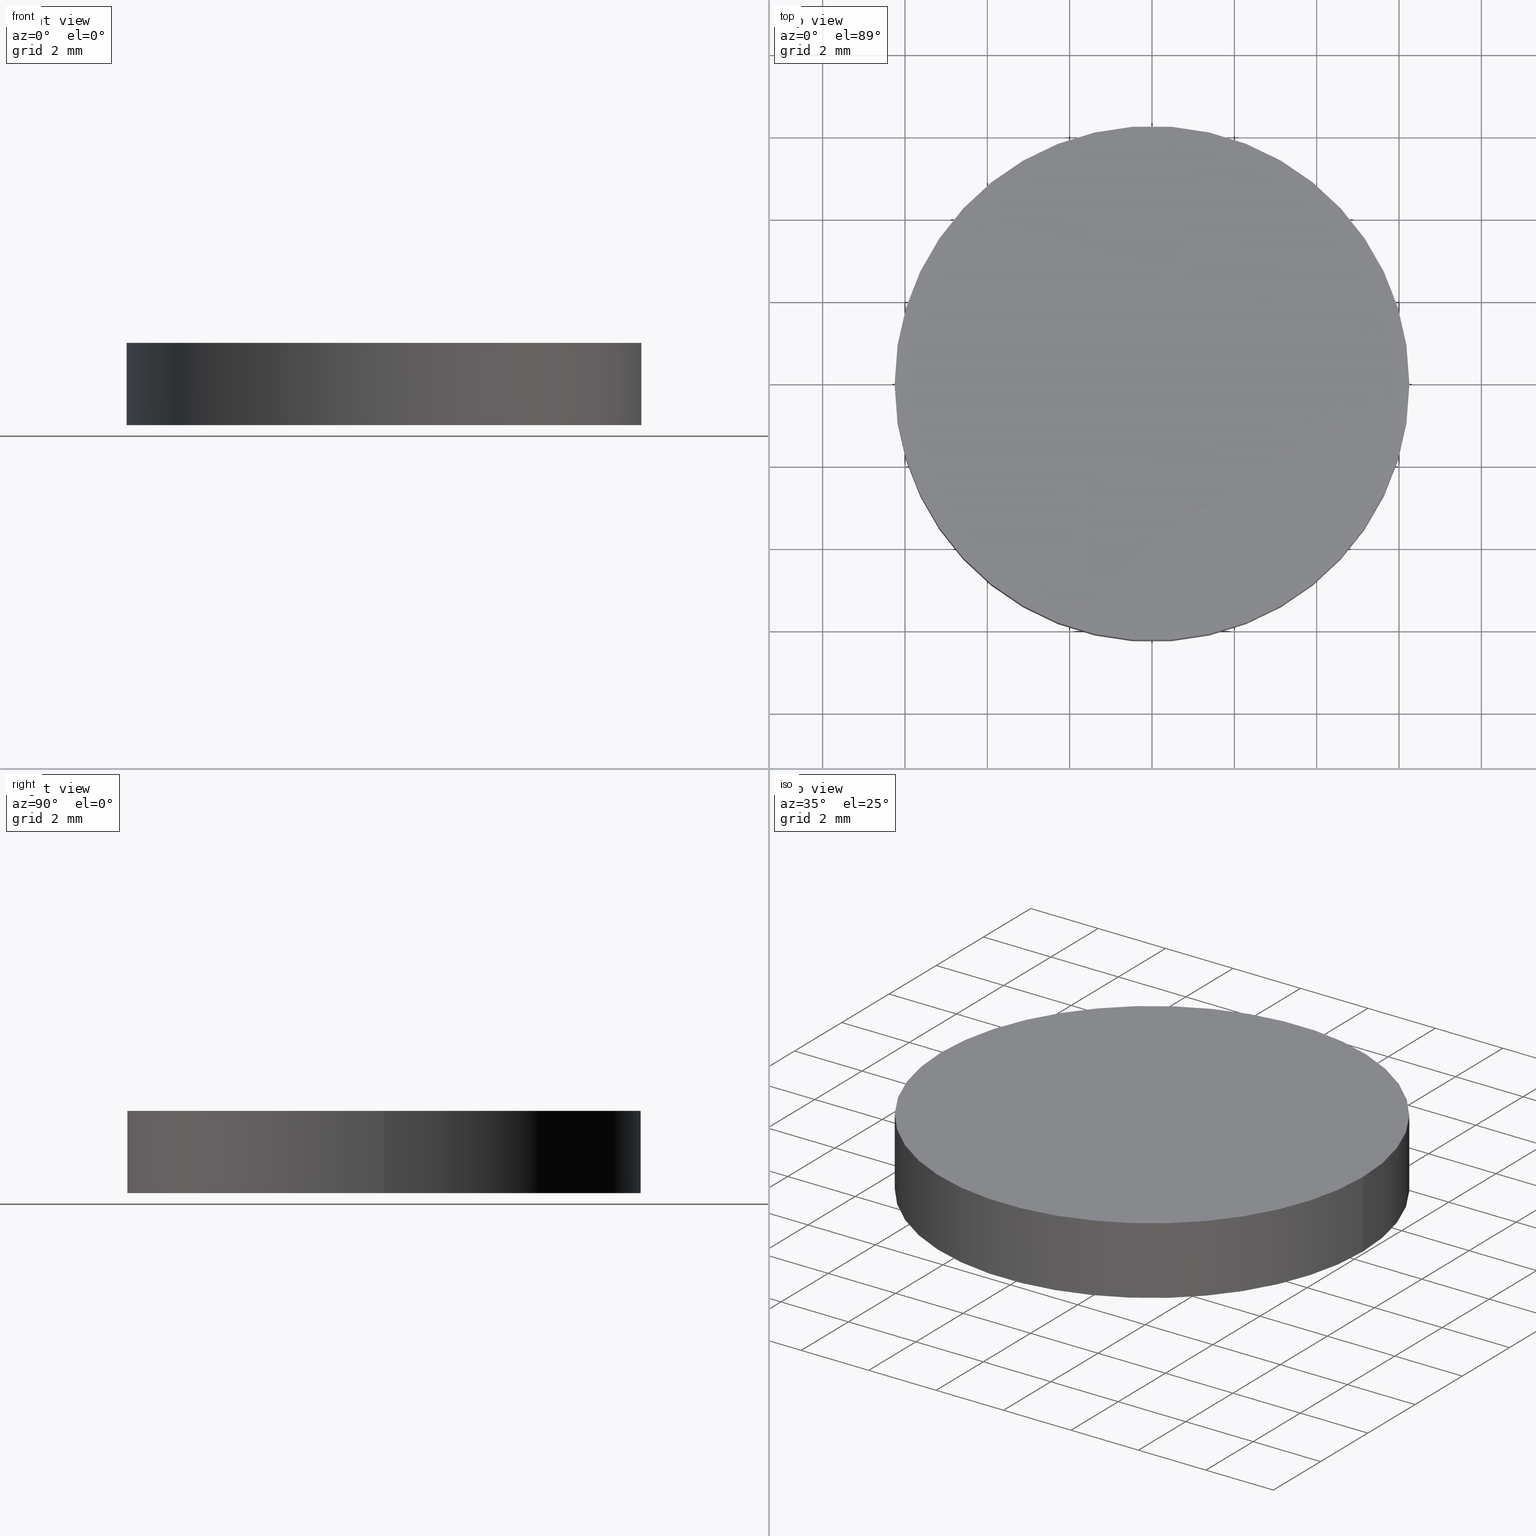
[diagram: canonical four-view strip — front | top / right | iso, engineering-drawing reading convention]
A machine part, canonical four-view strip (front | top / right | iso — engineering-drawing reading convention). The complete STEP part file that produces these views, byte-faithful:
ISO-10303-21;
HEADER;
FILE_DESCRIPTION (( 'STEP AP214' ),
    '1' );
FILE_NAME ('190123.STEP',
    '2019-07-17T03:26:46',
    ( 'user' ),
    ( '΢���й�' ),
    'SwSTEP 2.0',
    'SolidWorks 2016',
    '' );
FILE_SCHEMA (( 'AUTOMOTIVE_DESIGN' ));
ENDSEC;

DATA;
#1 = DIRECTION ( 'NONE',  ( 0.0000000000000000000, 0.0000000000000000000, 1.000000000000000000 ) ) ;
#2 = FILL_AREA_STYLE ('',( #82 ) ) ;
#3 = COLOUR_RGB ( '',1.000000000000000000, 1.000000000000000000, 1.000000000000000000 ) ;
#4 = CIRCLE ( 'NONE', #115, 6.250000000000000000 ) ;
#5 = MECHANICAL_DESIGN_GEOMETRIC_PRESENTATION_REPRESENTATION (  '', ( #132 ), #12 ) ;
#6 = ADVANCED_FACE ( 'NONE', ( #59 ), #35, .F. ) ;
#7 = VERTEX_POINT ( 'NONE', #8 ) ;
#8 = CARTESIAN_POINT ( 'NONE',  ( -6.250000000000000000, 0.0000000000000000000, 2.000000000000000000 ) ) ;
#9 = DIRECTION ( 'NONE',  ( 1.000000000000000000, 0.0000000000000000000, 0.0000000000000000000 ) ) ;
#10 = ADVANCED_FACE ( 'NONE', ( #79 ), #100, .T. ) ;
#11 = VERTEX_POINT ( 'NONE', #78 ) ;
#12 =( GEOMETRIC_REPRESENTATION_CONTEXT ( 3 ) GLOBAL_UNCERTAINTY_ASSIGNED_CONTEXT ( ( #60 ) ) GLOBAL_UNIT_ASSIGNED_CONTEXT ( ( #53, #130, #40 ) ) REPRESENTATION_CONTEXT ( 'NONE', 'WORKASPACE' ) );
#13 = EDGE_CURVE ( 'NONE', #91, #11, #113, .T. ) ;
#14 = FACE_OUTER_BOUND ( 'NONE', #86, .T. ) ;
#15 = ORIENTED_EDGE ( 'NONE', *, *, #19, .F. ) ;
#16 = PRODUCT_DEFINITION_SHAPE ( 'NONE', 'NONE',  #37 ) ;
#17 = DIRECTION ( 'NONE',  ( -1.000000000000000000, 0.0000000000000000000, 0.0000000000000000000 ) ) ;
#18 = DIRECTION ( 'NONE',  ( 1.000000000000000000, 0.0000000000000000000, -0.0000000000000000000 ) ) ;
#19 = EDGE_CURVE ( 'NONE', #136, #11, #21, .T. ) ;
#20 = FACE_OUTER_BOUND ( 'NONE', #71, .T. ) ;
#21 = LINE ( 'NONE', #121, #58 ) ;
#22 = AXIS2_PLACEMENT_3D ( 'NONE', #116, #87, #18 ) ;
#23 = DIRECTION ( 'NONE',  ( 0.0000000000000000000, 0.0000000000000000000, 1.000000000000000000 ) ) ;
#24 = PRODUCT_CONTEXT ( 'NONE', #80, 'mechanical' ) ;
#25 = CARTESIAN_POINT ( 'NONE',  ( 6.250000000000000000, 7.654042494670957600E-016, 2.000000000000000000 ) ) ;
#26 = FILL_AREA_STYLE_COLOUR ( '', #75 ) ;
#27 = DIRECTION ( 'NONE',  ( -0.0000000000000000000, -0.0000000000000000000, -1.000000000000000000 ) ) ;
#28 = DIRECTION ( 'NONE',  ( 1.000000000000000000, 0.0000000000000000000, -0.0000000000000000000 ) ) ;
#29 = LINE ( 'NONE', #76, #111 ) ;
#30 = APPLICATION_CONTEXT ( 'automotive_design' ) ;
#31 =( NAMED_UNIT ( * ) PLANE_ANGLE_UNIT ( ) SI_UNIT ( $, .RADIAN. ) );
#32 = AXIS2_PLACEMENT_3D ( 'NONE', #74, #93, #9 ) ;
#33 = EDGE_CURVE ( 'NONE', #11, #91, #4, .T. ) ;
#34 = ORIENTED_EDGE ( 'NONE', *, *, #48, .T. ) ;
#35 = PLANE ( 'NONE',  #61 ) ;
#36 = ORIENTED_EDGE ( 'NONE', *, *, #96, .F. ) ;
#37 = PRODUCT_DEFINITION ( 'δ֪', '', #47, #126 ) ;
#38 = CIRCLE ( 'NONE', #50, 6.250000000000000000 ) ;
#39 = ORIENTED_EDGE ( 'NONE', *, *, #96, .T. ) ;
#40 =( NAMED_UNIT ( * ) SI_UNIT ( $, .STERADIAN. ) SOLID_ANGLE_UNIT ( ) );
#41 = SHAPE_DEFINITION_REPRESENTATION ( #16, #108 ) ;
#42 = SURFACE_STYLE_FILL_AREA ( #135 ) ;
#43 = ORIENTED_EDGE ( 'NONE', *, *, #33, .F. ) ;
#44 = DIRECTION ( 'NONE',  ( 1.000000000000000000, 0.0000000000000000000, 0.0000000000000000000 ) ) ;
#45 = CARTESIAN_POINT ( 'NONE',  ( 0.0000000000000000000, 0.0000000000000000000, 0.0000000000000000000 ) ) ;
#46 = CARTESIAN_POINT ( 'NONE',  ( 0.0000000000000000000, 0.0000000000000000000, 2.000000000000000000 ) ) ;
#47 = PRODUCT_DEFINITION_FORMATION_WITH_SPECIFIED_SOURCE ( '�κ�', '', #125, .NOT_KNOWN. ) ;
#48 = EDGE_CURVE ( 'NONE', #7, #91, #29, .T. ) ;
#49 = ORIENTED_EDGE ( 'NONE', *, *, #139, .T. ) ;
#50 = AXIS2_PLACEMENT_3D ( 'NONE', #112, #23, #57 ) ;
#51 = PRESENTATION_LAYER_ASSIGNMENT (  '', '', ( #62 ) ) ;
#52 = DIRECTION ( 'NONE',  ( 0.0000000000000000000, 0.0000000000000000000, 1.000000000000000000 ) ) ;
#53 =( LENGTH_UNIT ( ) NAMED_UNIT ( * ) SI_UNIT ( .MILLI., .METRE. ) );
#54 =( LENGTH_UNIT ( ) NAMED_UNIT ( * ) SI_UNIT ( .MILLI., .METRE. ) );
#55 = PRESENTATION_STYLE_ASSIGNMENT (( #105 ) ) ;
#56 =( NAMED_UNIT ( * ) PLANE_ANGLE_UNIT ( ) SI_UNIT ( $, .RADIAN. ) );
#57 = DIRECTION ( 'NONE',  ( 1.000000000000000000, 0.0000000000000000000, 0.0000000000000000000 ) ) ;
#58 = VECTOR ( 'NONE', #83, 1000.000000000000000 ) ;
#59 = FACE_OUTER_BOUND ( 'NONE', #127, .T. ) ;
#60 = UNCERTAINTY_MEASURE_WITH_UNIT (LENGTH_MEASURE( 1.000000000000000100E-005 ), #53, 'distance_accuracy_value', 'NONE');
#61 = AXIS2_PLACEMENT_3D ( 'NONE', #45, #52, #28 ) ;
#62 = STYLED_ITEM ( 'NONE', ( #67 ), #99 ) ;
#63 = EDGE_LOOP ( 'NONE', ( #49, #39 ) ) ;
#64 = APPLICATION_PROTOCOL_DEFINITION ( 'draft international standard', 'automotive_design', 1998, #30 ) ;
#65 = DIRECTION ( 'NONE',  ( 0.0000000000000000000, 0.0000000000000000000, 1.000000000000000000 ) ) ;
#66 = SURFACE_STYLE_USAGE ( .BOTH. , #133 ) ;
#67 = PRESENTATION_STYLE_ASSIGNMENT (( #66 ) ) ;
#68 = ORIENTED_EDGE ( 'NONE', *, *, #33, .T. ) ;
#69 = DIRECTION ( 'NONE',  ( -0.0000000000000000000, -0.0000000000000000000, -1.000000000000000000 ) ) ;
#70 = PRODUCT_RELATED_PRODUCT_CATEGORY ( 'part', '', ( #125 ) ) ;
#71 = EDGE_LOOP ( 'NONE', ( #36, #97, #68, #122 ) ) ;
#72 = ORIENTED_EDGE ( 'NONE', *, *, #13, .T. ) ;
#73 = SURFACE_SIDE_STYLE ('',( #89 ) ) ;
#74 = CARTESIAN_POINT ( 'NONE',  ( 0.0000000000000000000, 0.0000000000000000000, 0.0000000000000000000 ) ) ;
#75 = COLOUR_RGB ( '',1.000000000000000000, 1.000000000000000000, 1.000000000000000000 ) ;
#76 = CARTESIAN_POINT ( 'NONE',  ( -6.250000000000000000, 0.0000000000000000000, 2.000000000000000000 ) ) ;
#77 = ADVANCED_FACE ( 'NONE', ( #20 ), #84, .T. ) ;
#78 = CARTESIAN_POINT ( 'NONE',  ( 6.250000000000000000, 7.654042494670957600E-016, 0.0000000000000000000 ) ) ;
#79 = FACE_OUTER_BOUND ( 'NONE', #63, .T. ) ;
#80 = APPLICATION_CONTEXT ( 'automotive_design' ) ;
#81 = MECHANICAL_DESIGN_GEOMETRIC_PRESENTATION_REPRESENTATION (  '', ( #62 ), #92 ) ;
#82 = FILL_AREA_STYLE_COLOUR ( '', #3 ) ;
#83 = DIRECTION ( 'NONE',  ( -0.0000000000000000000, -0.0000000000000000000, -1.000000000000000000 ) ) ;
#84 = CYLINDRICAL_SURFACE ( 'NONE', #90, 6.250000000000000000 ) ;
#85 = CARTESIAN_POINT ( 'NONE',  ( -6.250000000000000000, 0.0000000000000000000, 0.0000000000000000000 ) ) ;
#86 = EDGE_LOOP ( 'NONE', ( #15, #117, #34, #72 ) ) ;
#87 = DIRECTION ( 'NONE',  ( 0.0000000000000000000, 0.0000000000000000000, 1.000000000000000000 ) ) ;
#88 = DIRECTION ( 'NONE',  ( -0.0000000000000000000, -0.0000000000000000000, -1.000000000000000000 ) ) ;
#89 = SURFACE_STYLE_FILL_AREA ( #2 ) ;
#90 = AXIS2_PLACEMENT_3D ( 'NONE', #98, #88, #110 ) ;
#91 = VERTEX_POINT ( 'NONE', #85 ) ;
#92 =( GEOMETRIC_REPRESENTATION_CONTEXT ( 3 ) GLOBAL_UNCERTAINTY_ASSIGNED_CONTEXT ( ( #137 ) ) GLOBAL_UNIT_ASSIGNED_CONTEXT ( ( #120, #56, #109 ) ) REPRESENTATION_CONTEXT ( 'NONE', 'WORKASPACE' ) );
#93 = DIRECTION ( 'NONE',  ( 0.0000000000000000000, 0.0000000000000000000, 1.000000000000000000 ) ) ;
#94 = DIRECTION ( 'NONE',  ( 1.000000000000000000, 0.0000000000000000000, 0.0000000000000000000 ) ) ;
#95 = APPLICATION_PROTOCOL_DEFINITION ( 'draft international standard', 'automotive_design', 1998, #80 ) ;
#96 = EDGE_CURVE ( 'NONE', #136, #7, #38, .T. ) ;
#97 = ORIENTED_EDGE ( 'NONE', *, *, #19, .T. ) ;
#98 = CARTESIAN_POINT ( 'NONE',  ( 0.0000000000000000000, 0.0000000000000000000, 2.000000000000000000 ) ) ;
#99 = MANIFOLD_SOLID_BREP ( '͹̨-����1', #102 ) ;
#100 = PLANE ( 'NONE',  #22 ) ;
#101 =( GEOMETRIC_REPRESENTATION_CONTEXT ( 3 ) GLOBAL_UNCERTAINTY_ASSIGNED_CONTEXT ( ( #118 ) ) GLOBAL_UNIT_ASSIGNED_CONTEXT ( ( #54, #31, #106 ) ) REPRESENTATION_CONTEXT ( 'NONE', 'WORKASPACE' ) );
#102 = CLOSED_SHELL ( 'NONE', ( #77, #124, #10, #6 ) ) ;
#103 = AXIS2_PLACEMENT_3D ( 'NONE', #128, #1, #94 ) ;
#104 = CARTESIAN_POINT ( 'NONE',  ( 0.0000000000000000000, 0.0000000000000000000, 0.0000000000000000000 ) ) ;
#105 = SURFACE_STYLE_USAGE ( .BOTH. , #73 ) ;
#106 =( NAMED_UNIT ( * ) SI_UNIT ( $, .STERADIAN. ) SOLID_ANGLE_UNIT ( ) );
#107 = AXIS2_PLACEMENT_3D ( 'NONE', #131, #65, #119 ) ;
#108 = ADVANCED_BREP_SHAPE_REPRESENTATION ( '190123', ( #99, #32 ), #101 ) ;
#109 =( NAMED_UNIT ( * ) SI_UNIT ( $, .STERADIAN. ) SOLID_ANGLE_UNIT ( ) );
#110 = DIRECTION ( 'NONE',  ( -1.000000000000000000, 0.0000000000000000000, 0.0000000000000000000 ) ) ;
#111 = VECTOR ( 'NONE', #27, 1000.000000000000000 ) ;
#112 = CARTESIAN_POINT ( 'NONE',  ( 0.0000000000000000000, 0.0000000000000000000, 2.000000000000000000 ) ) ;
#113 = CIRCLE ( 'NONE', #103, 6.250000000000000000 ) ;
#114 = AXIS2_PLACEMENT_3D ( 'NONE', #46, #69, #17 ) ;
#115 = AXIS2_PLACEMENT_3D ( 'NONE', #104, #123, #44 ) ;
#116 = CARTESIAN_POINT ( 'NONE',  ( 0.0000000000000000000, 0.0000000000000000000, 2.000000000000000000 ) ) ;
#117 = ORIENTED_EDGE ( 'NONE', *, *, #139, .F. ) ;
#118 = UNCERTAINTY_MEASURE_WITH_UNIT (LENGTH_MEASURE( 1.000000000000000100E-005 ), #54, 'distance_accuracy_value', 'NONE');
#119 = DIRECTION ( 'NONE',  ( 1.000000000000000000, 0.0000000000000000000, 0.0000000000000000000 ) ) ;
#120 =( LENGTH_UNIT ( ) NAMED_UNIT ( * ) SI_UNIT ( .MILLI., .METRE. ) );
#121 = CARTESIAN_POINT ( 'NONE',  ( 6.250000000000000000, 7.654042494670957600E-016, 2.000000000000000000 ) ) ;
#122 = ORIENTED_EDGE ( 'NONE', *, *, #48, .F. ) ;
#123 = DIRECTION ( 'NONE',  ( 0.0000000000000000000, 0.0000000000000000000, 1.000000000000000000 ) ) ;
#124 = ADVANCED_FACE ( 'NONE', ( #14 ), #140, .T. ) ;
#125 = PRODUCT ( '190123', '190123', '', ( #24 ) ) ;
#126 = PRODUCT_DEFINITION_CONTEXT ( 'detailed design', #30, 'design' ) ;
#127 = EDGE_LOOP ( 'NONE', ( #129, #43 ) ) ;
#128 = CARTESIAN_POINT ( 'NONE',  ( 0.0000000000000000000, 0.0000000000000000000, 0.0000000000000000000 ) ) ;
#129 = ORIENTED_EDGE ( 'NONE', *, *, #13, .F. ) ;
#130 =( NAMED_UNIT ( * ) PLANE_ANGLE_UNIT ( ) SI_UNIT ( $, .RADIAN. ) );
#131 = CARTESIAN_POINT ( 'NONE',  ( 0.0000000000000000000, 0.0000000000000000000, 2.000000000000000000 ) ) ;
#132 = STYLED_ITEM ( 'NONE', ( #55 ), #108 ) ;
#133 = SURFACE_SIDE_STYLE ('',( #42 ) ) ;
#134 = CIRCLE ( 'NONE', #107, 6.250000000000000000 ) ;
#135 = FILL_AREA_STYLE ('',( #26 ) ) ;
#136 = VERTEX_POINT ( 'NONE', #25 ) ;
#137 = UNCERTAINTY_MEASURE_WITH_UNIT (LENGTH_MEASURE( 1.000000000000000100E-005 ), #120, 'distance_accuracy_value', 'NONE');
#138 = PRESENTATION_LAYER_ASSIGNMENT (  '', '', ( #132 ) ) ;
#139 = EDGE_CURVE ( 'NONE', #7, #136, #134, .T. ) ;
#140 = CYLINDRICAL_SURFACE ( 'NONE', #114, 6.250000000000000000 ) ;
ENDSEC;
END-ISO-10303-21;
